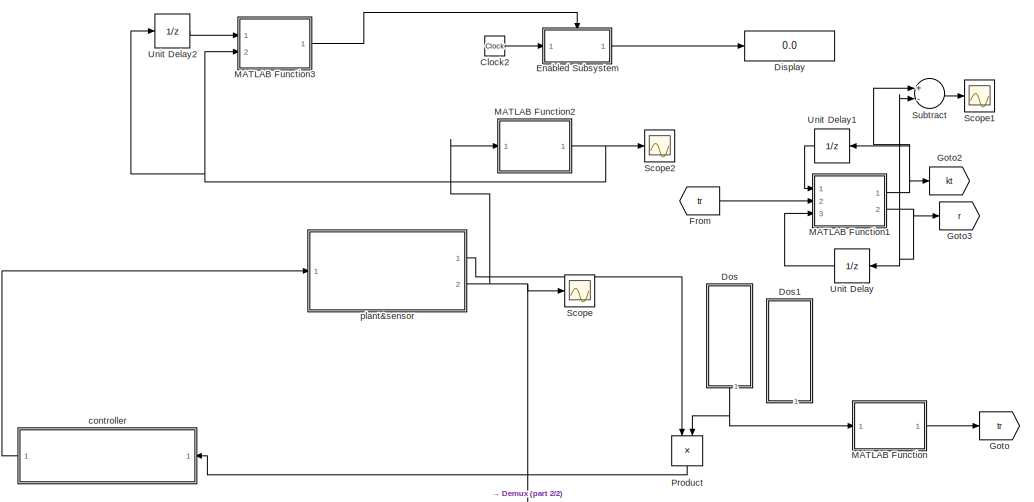
[diagram: root canvas - part 1/2, middle left region]
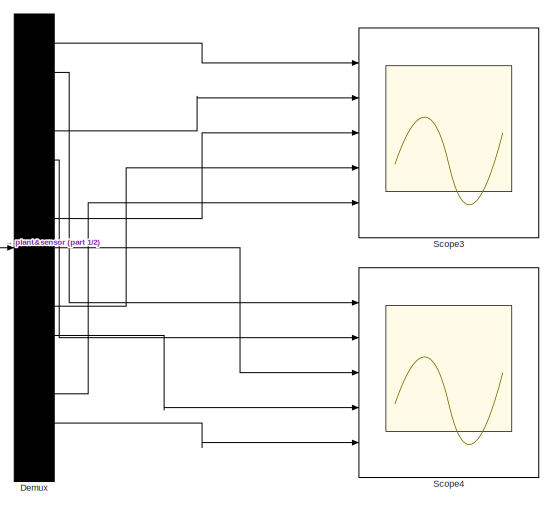
[diagram: root canvas - part 2/2, bottom right region]
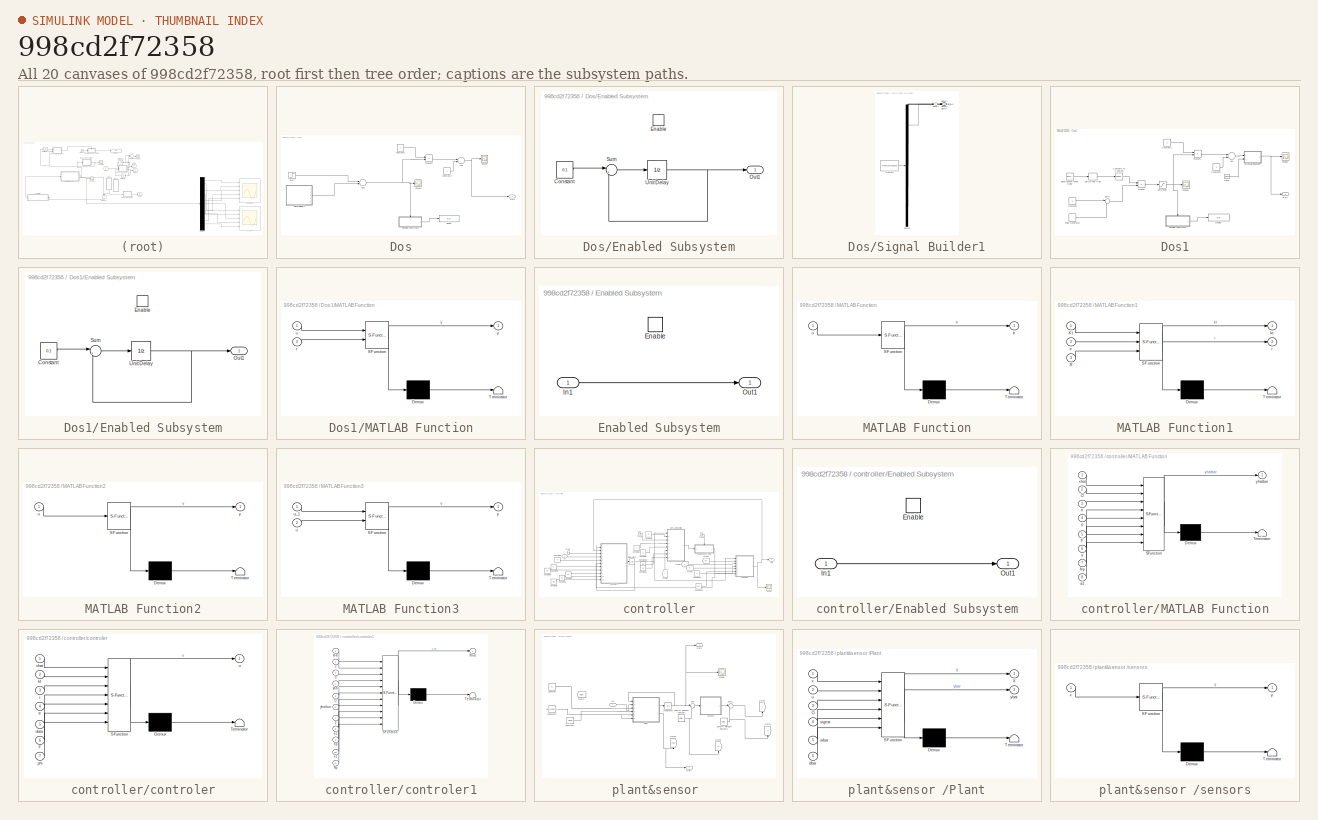
[diagram: thumbnail index - all 20 canvases of the model, root first then tree order]
MODEL slx_998cd2f72358
KIND model
CONFIG AbsTol = auto
CONFIG EnableMultiTasking = off
CONFIG FixedStep = auto
CONFIG MaxStep = auto
CONFIG MinStep = auto
CONFIG RelTol = 1e-3
CONFIG SampleTimeConstraint = Unconstrained
CONFIG Solver = VariableStepAuto
CONFIG SolverName = VariableStepAuto
CONFIG StartTime = 0.0
CONFIG StopTime = 10
BLOCK [Clock] Clock2
BLOCK [Demux] Demux
  DisplayOption = bar
  Outputs = 15
  Ports = [1, 15]
BLOCK [Display] Display
  Decimation = 1
  Ports = [1]
BLOCK [SubSystem] Dos
  Ports = [0, 1]
  RequestExecContextInheritance = off
BLOCK [Sum] Dos/Add
  InputSameDT = off
  OutDataTypeStr = Inherit: Inherit via internal rule
  Ports = [2, 1]
  SaturateOnIntegerOverflow = off
BLOCK [Sum] Dos/Add1
  InputSameDT = off
  OutDataTypeStr = Inherit: Inherit via internal rule
  Ports = [2, 1]
  SaturateOnIntegerOverflow = off
BLOCK [Constant] Dos/Constant1
  Value = -1
BLOCK [Constant] Dos/Constant2
BLOCK [Display] Dos/Display
  Decimation = 1
  Ports = [1]
BLOCK [SubSystem] Dos/Enabled Subsystem
  Ports = [0, 1, 1]
  RequestExecContextInheritance = off
  TreatAsAtomicUnit = on
BLOCK [Constant] Dos/Enabled Subsystem/Constant
  Value = 0.1
BLOCK [EnablePort] Dos/Enabled Subsystem/Enable
  Ports = []
BLOCK [Outport] Dos/Enabled Subsystem/Out1
  IconDisplay = Port number
BLOCK [Sum] Dos/Enabled Subsystem/Sum
  IconShape = round
  InputSameDT = off
  Inputs = |++
  OutDataTypeStr = Inherit: Inherit via internal rule
  Ports = [2, 1]
  SaturateOnIntegerOverflow = off
BLOCK [UnitDelay] Dos/Enabled Subsystem/Unit Delay
  InputProcessing = Elements as channels (sample based)
  SampleTime = -1
BLOCK [Outport] Dos/Out1
  IconDisplay = Port number
BLOCK [Product] Dos/Product1
  InputSameDT = off
  OutDataTypeStr = Inherit: Inherit via internal rule
  Ports = [2, 1]
  RndMeth = Floor
  SaturateOnIntegerOverflow = off
BLOCK [Scope] Dos/Scope1
  Floating = off
  NumInputPorts = 1
  Ports = [1]
  ScopeSpecificationString = Simulink.scopes.TimeScopeBlockCfg('CurrentConfiguration', extmgr.ConfigurationSet(extmgr.Configuration('Core','General UI',true),extmgr.Configuration('Core','Source UI',true),extmgr.Configuration('Sources','WiredSimulink',true,'DataLoggingVariableName','ScopeData1'),extmgr.Configuration('Visuals','Time Domain',true,'SerializedDisplays',{struct('MinYLimReal','-0.125','MaxYLimReal','1.125','YLabelRe...<+1519ch>
BLOCK [Scope] Dos/Scope2
  Floating = off
  NumInputPorts = 1
  Ports = [1]
  ScopeSpecificationString = Simulink.scopes.TimeScopeBlockCfg('CurrentConfiguration', extmgr.ConfigurationSet(extmgr.Configuration('Core','General UI',true),extmgr.Configuration('Core','Source UI',true),extmgr.Configuration('Sources','WiredSimulink',true,'DataLoggingVariableName','ScopeData1'),extmgr.Configuration('Visuals','Time Domain',true,'SerializedDisplays',{struct('MinYLimReal','-0.125','MaxYLimReal','1.125','YLabelRe...<+1386ch>
BLOCK [SubSystem] Dos/Signal Builder1
  ClipboardFcn = sigbuilder_block('clipboard');
  CloseFcn = sigbuilder_block('close');
  ContinueFcn = sigbuilder_block('continue');
  CopyFcn = sigbuilder_block('copy');
  DeleteFcn = sigbuilder_block('delete');
  LoadFcn = sigbuilder_block('load');
  MaskHideContents = on
  ModelCloseFcn = sigbuilder_block('modelClose');
  NameChangeFcn = sigbuilder_block('namechange');
  OpenFcn = sigbuilder_block('open',[5.4 30 1141.2 522.6 ]);
  PauseFcn = sigbuilder_block('pause');
  Ports = [0, 5]
  PreSaveFcn = sigbuilder_block('preSave');
  RequestExecContextInheritance = off
  StartFcn = sigbuilder_block('start');
  StopFcn = sigbuilder_block('stop');
  Tag = STV Subsys
BLOCK [Demux] Dos/Signal Builder1/Demux
  Outputs = 5
  Ports = [1, 5]
  Tag = STV Demux
BLOCK [FromWorkspace] Dos/Signal Builder1/FromWs
  SampleTime = 0
  Tag = STV FromWs
  VariableName = tuvar
  ZeroCross = on
BLOCK [Outport] Dos/Signal Builder1/Signal 1
  IconDisplay = Port number
  Tag = STV Outport
BLOCK [Outport] Dos/Signal Builder1/Signal 2
  IconDisplay = Port number
  Port = 2
  Tag = STV Outport
BLOCK [Outport] Dos/Signal Builder1/Signal 3
  IconDisplay = Port number
  Port = 3
  Tag = STV Outport
BLOCK [Outport] Dos/Signal Builder1/Signal 4
  IconDisplay = Port number
  Port = 4
  Tag = STV Outport
BLOCK [Outport] Dos/Signal Builder1/Signal 5
  IconDisplay = Port number
  Port = 5
  Tag = STV Outport
BLOCK [Step] Dos/Step
  After = -1
  SampleTime = 10
BLOCK [SubSystem] Dos1
  Ports = [0, 1]
  RequestExecContextInheritance = off
BLOCK [Sum] Dos1/Add
  InputSameDT = off
  OutDataTypeStr = Inherit: Inherit via internal rule
  Ports = [2, 1]
  SaturateOnIntegerOverflow = off
BLOCK [Reference] Dos1/Band-Limited White Noise  REF=simulink/Sources/Band-Limited
White Noise
  Ports = [0, 1]
  SourceBlock = simulink/Sources/Band-Limited\nWhite Noise
  SourceProductBaseCode = SL
  SourceProductName = Simulink
  SourceType = Band-Limited White Noise.
BLOCK [Clock] Dos1/Clock
BLOCK [Reference] Dos1/Compare To Constant  REF=simulink/Logic and Bit
Operations/Compare
To Constant
  Ports = [1, 1]
  SourceBlock = simulink/Logic and Bit\nOperations/Compare\nTo Constant
  SourceProductBaseCode = SL
  SourceProductName = Simulink
  SourceType = Compare To Constant
BLOCK [Constant] Dos1/Constant
BLOCK [Constant] Dos1/Constant1
  Value = -1
BLOCK [Constant] Dos1/Constant2
BLOCK [Display] Dos1/Display
  Decimation = 1
  Ports = [1]
BLOCK [SubSystem] Dos1/Enabled Subsystem
  Ports = [0, 1, 1]
  RequestExecContextInheritance = off
  TreatAsAtomicUnit = on
BLOCK [Constant] Dos1/Enabled Subsystem/Constant
  Value = 0.1
BLOCK [EnablePort] Dos1/Enabled Subsystem/Enable
  Ports = []
BLOCK [Outport] Dos1/Enabled Subsystem/Out1
  IconDisplay = Port number
BLOCK [Sum] Dos1/Enabled Subsystem/Sum
  IconShape = round
  InputSameDT = off
  Inputs = |++
  OutDataTypeStr = Inherit: Inherit via internal rule
  Ports = [2, 1]
  SaturateOnIntegerOverflow = off
BLOCK [UnitDelay] Dos1/Enabled Subsystem/Unit Delay
  InputProcessing = Elements as channels (sample based)
  SampleTime = -1
BLOCK [SubSystem] Dos1/MATLAB Function
  ErrorFcn = Stateflow.Translate.translate
  PermitHierarchicalResolution = ExplicitOnly
  Ports = [2, 1]
  RequestExecContextInheritance = off
  SFBlockType = MATLAB Function
  TreatAsAtomicUnit = on
BLOCK [Demux] Dos1/MATLAB Function/ Demux 
  Outputs = 1
  Ports = [1, 1]
BLOCK [S-Function] Dos1/MATLAB Function/ SFunction 
  EnableBusSupport = on
  FunctionName = sf_sfun
  PortCounts = [2 2]
  Ports = [2, 2]
  SFcnIsStateOwnerBlock = off
  SFunctionDeploymentMode = off
  Tag = Stateflow S-Function untitled 9
BLOCK [Terminator] Dos1/MATLAB Function/ Terminator 
BLOCK [Inport] Dos1/MATLAB Function/t
  IconDisplay = Port number
  Port = 2
BLOCK [Inport] Dos1/MATLAB Function/u
  IconDisplay = Port number
BLOCK [Outport] Dos1/MATLAB Function/y
  IconDisplay = Port number
BLOCK [Outport] Dos1/Out1
  IconDisplay = Port number
BLOCK [Product] Dos1/Product
  InputSameDT = off
  OutDataTypeStr = Inherit: Inherit via internal rule
  Ports = [2, 1]
  RndMeth = Floor
  SaturateOnIntegerOverflow = off
BLOCK [Product] Dos1/Product1
  InputSameDT = off
  OutDataTypeStr = Inherit: Inherit via internal rule
  Ports = [2, 1]
  RndMeth = Floor
  SaturateOnIntegerOverflow = off
BLOCK [DiscretePulseGenerator] Dos1/Pulse Generator
  Amplitude = 2
  Ports = [0, 1]
  PulseType = Time based
  PulseWidth = 50
BLOCK [Saturate] Dos1/Saturation
  InputPortMap = u0
  LowerLimit = 0
  Ports = [1, 1]
  UpperLimit = 1
BLOCK [Scope] Dos1/Scope1
  Floating = off
  NumInputPorts = 1
  Ports = [1]
  ScopeSpecificationString = Simulink.scopes.TimeScopeBlockCfg('CurrentConfiguration', extmgr.ConfigurationSet(extmgr.Configuration('Core','General UI',true),extmgr.Configuration('Core','Source UI',true),extmgr.Configuration('Sources','WiredSimulink',true,'DataLoggingVariableName','DOS','DataLogging',true,'DataLoggingSaveFormat','StructureWithTime'),extmgr.Configuration('Visuals','Time Domain',true,'SerializedDisplays',{struc...<+1447ch>
BLOCK [Scope] Dos1/Scope2
  Floating = off
  NumInputPorts = 1
  Ports = [1]
  ScopeSpecificationString = Simulink.scopes.TimeScopeBlockCfg('CurrentConfiguration', extmgr.ConfigurationSet(extmgr.Configuration('Core','General UI',true),extmgr.Configuration('Core','Source UI',true),extmgr.Configuration('Sources','WiredSimulink',true,'DataLoggingVariableName','ScopeData1'),extmgr.Configuration('Visuals','Time Domain',true,'SerializedDisplays',{struct('MinYLimReal','-0.125','MaxYLimReal','1.125','YLabelRe...<+1398ch>
BLOCK [Sum] Dos1/Sum2
  IconShape = round
  InputSameDT = off
  Inputs = |-+
  OutDataTypeStr = Inherit: Inherit via internal rule
  Ports = [2, 1]
  SaturateOnIntegerOverflow = off
BLOCK [ZeroOrderHold] Dos1/Zero-Order Hold
  SampleTime = -1
BLOCK [SubSystem] Enabled Subsystem
  Ports = [1, 1, 1]
  RequestExecContextInheritance = off
  TreatAsAtomicUnit = on
BLOCK [EnablePort] Enabled Subsystem/Enable
  Ports = []
BLOCK [Inport] Enabled Subsystem/In1
  IconDisplay = Port number
BLOCK [Outport] Enabled Subsystem/Out1
  IconDisplay = Port number
BLOCK [From] From
  GotoTag = tr
  TagVisibility = global
BLOCK [Goto] Goto
  GotoTag = tr
  TagVisibility = global
BLOCK [Goto] Goto2
  GotoTag = kt
  TagVisibility = global
BLOCK [Goto] Goto3
  GotoTag = r
  TagVisibility = global
BLOCK [SubSystem] MATLAB Function
  ErrorFcn = Stateflow.Translate.translate
  PermitHierarchicalResolution = ExplicitOnly
  Ports = [1, 1]
  RequestExecContextInheritance = off
  SFBlockType = MATLAB Function
  TreatAsAtomicUnit = on
BLOCK [Demux] MATLAB Function/ Demux 
  Outputs = 1
  Ports = [1, 1]
BLOCK [S-Function] MATLAB Function/ SFunction 
  EnableBusSupport = on
  FunctionName = sf_sfun
  PortCounts = [1 2]
  Ports = [1, 2]
  SFcnIsStateOwnerBlock = off
  SFunctionDeploymentMode = off
  Tag = Stateflow S-Function untitled 4
BLOCK [Terminator] MATLAB Function/ Terminator 
BLOCK [Outport] MATLAB Function/tr
  IconDisplay = Port number
BLOCK [Inport] MATLAB Function/u
  IconDisplay = Port number
BLOCK [SubSystem] MATLAB Function1
  ErrorFcn = Stateflow.Translate.translate
  PermitHierarchicalResolution = ExplicitOnly
  Ports = [3, 2]
  RequestExecContextInheritance = off
  SFBlockType = MATLAB Function
  TreatAsAtomicUnit = on
BLOCK [Demux] MATLAB Function1/ Demux 
  Outputs = 1
  Ports = [1, 1]
BLOCK [S-Function] MATLAB Function1/ SFunction 
  EnableBusSupport = on
  FunctionName = sf_sfun
  PortCounts = [3 3]
  Ports = [3, 3]
  SFcnIsStateOwnerBlock = off
  SFunctionDeploymentMode = off
  Tag = Stateflow S-Function untitled 12
BLOCK [Terminator] MATLAB Function1/ Terminator 
BLOCK [Inport] MATLAB Function1/Kt
  IconDisplay = Port number
BLOCK [Inport] MATLAB Function1/R
  IconDisplay = Port number
  Port = 3
BLOCK [Outport] MATLAB Function1/kt
  IconDisplay = Port number
BLOCK [Outport] MATLAB Function1/r
  IconDisplay = Port number
  Port = 2
BLOCK [Inport] MATLAB Function1/tr
  IconDisplay = Port number
  Port = 2
BLOCK [SubSystem] MATLAB Function2
  ErrorFcn = Stateflow.Translate.translate
  PermitHierarchicalResolution = ExplicitOnly
  Ports = [1, 1]
  RequestExecContextInheritance = off
  SFBlockType = MATLAB Function
  TreatAsAtomicUnit = on
BLOCK [Demux] MATLAB Function2/ Demux 
  Outputs = 1
  Ports = [1, 1]
BLOCK [S-Function] MATLAB Function2/ SFunction 
  EnableBusSupport = on
  FunctionName = sf_sfun
  PortCounts = [1 2]
  Ports = [1, 2]
  SFcnIsStateOwnerBlock = off
  SFunctionDeploymentMode = off
  Tag = Stateflow S-Function untitled 8
BLOCK [Terminator] MATLAB Function2/ Terminator 
BLOCK [Inport] MATLAB Function2/u
  IconDisplay = Port number
BLOCK [Outport] MATLAB Function2/y
  IconDisplay = Port number
BLOCK [SubSystem] MATLAB Function3
  ErrorFcn = Stateflow.Translate.translate
  PermitHierarchicalResolution = ExplicitOnly
  Ports = [2, 1]
  RequestExecContextInheritance = off
  SFBlockType = MATLAB Function
  TreatAsAtomicUnit = on
BLOCK [Demux] MATLAB Function3/ Demux 
  Outputs = 1
  Ports = [1, 1]
BLOCK [S-Function] MATLAB Function3/ SFunction 
  EnableBusSupport = on
  FunctionName = sf_sfun
  PortCounts = [2 2]
  Ports = [2, 2]
  SFcnIsStateOwnerBlock = off
  SFunctionDeploymentMode = off
  Tag = Stateflow S-Function untitled 5
BLOCK [Terminator] MATLAB Function3/ Terminator 
BLOCK [Inport] MATLAB Function3/u
  IconDisplay = Port number
  Port = 2
BLOCK [Inport] MATLAB Function3/u_1
  IconDisplay = Port number
BLOCK [Outport] MATLAB Function3/y
  IconDisplay = Port number
BLOCK [Product] Product
  InputSameDT = off
  OutDataTypeStr = Inherit: Inherit via internal rule
  Ports = [2, 1]
  RndMeth = Floor
  SaturateOnIntegerOverflow = off
BLOCK [Scope] Scope
  Floating = off
  NumInputPorts = 1
  Ports = [1]
  ScopeSpecificationString = Simulink.scopes.TimeScopeBlockCfg('CurrentConfiguration', extmgr.ConfigurationSet(extmgr.Configuration('Core','General UI',true),extmgr.Configuration('Core','Source UI',true),extmgr.Configuration('Sources','WiredSimulink',true,'DataLoggingVariableName','xlqr','DataLogging',true,'DataLoggingSaveFormat','StructureWithTime'),extmgr.Configuration('Visuals','Time Domain',true,'SerializedDisplays',{stru...<+1819ch>
BLOCK [Scope] Scope1
  Floating = off
  NumInputPorts = 1
  Ports = [1]
  ScopeSpecificationString = Simulink.scopes.TimeScopeBlockCfg('CurrentConfiguration', extmgr.ConfigurationSet(extmgr.Configuration('Core','General UI',true),extmgr.Configuration('Core','Source UI',true),extmgr.Configuration('Sources','WiredSimulink',true,'DataLoggingVariableName','ScopeData2'),extmgr.Configuration('Visuals','Time Domain',true,'SerializedDisplays',{struct('MinYLimReal','-0.375','MaxYLimReal','3.375','YLabelRe...<+1384ch>
BLOCK [Scope] Scope2
  Floating = off
  NumInputPorts = 1
  Ports = [1]
  ScopeSpecificationString = Simulink.scopes.TimeScopeBlockCfg('CurrentConfiguration', extmgr.ConfigurationSet(extmgr.Configuration('Core','General UI',true),extmgr.Configuration('Core','Source UI',true),extmgr.Configuration('Sources','WiredSimulink',true,'DataLoggingVariableName','nxlqr','DataLogging',true,'DataLoggingSaveFormat','StructureWithTime'),extmgr.Configuration('Visuals','Time Domain',true,'SerializedDisplays',{str...<+1477ch>
BLOCK [Scope] Scope3
  Floating = off
  NumInputPorts = 5
  Ports = [5]
  ScopeSpecificationString = Simulink.scopes.TimeScopeBlockCfg('CurrentConfiguration', extmgr.ConfigurationSet(extmgr.Configuration('Core','General UI',true),extmgr.Configuration('Core','Source UI',true),extmgr.Configuration('Sources','WiredSimulink',true,'DataLoggingVariableName','ScopeData1','DataLoggingSaveFormat','StructureWithTime'),extmgr.Configuration('Visuals','Time Domain',true,'SerializedDisplays',{struct('MinYLimRe...<+1542ch>
BLOCK [Scope] Scope4
  Floating = off
  NumInputPorts = 5
  Ports = [5]
  ScopeSpecificationString = Simulink.scopes.TimeScopeBlockCfg('CurrentConfiguration', extmgr.ConfigurationSet(extmgr.Configuration('Core','General UI',true),extmgr.Configuration('Core','Source UI',true),extmgr.Configuration('Sources','WiredSimulink',true,'DataLoggingVariableName','ScopeData2'),extmgr.Configuration('Visuals','Time Domain',true,'SerializedDisplays',{struct('MinYLimReal','-9.11048','MaxYLimReal','8.75886','YLab...<+1437ch>
BLOCK [Sum] Subtract
  InputSameDT = off
  Inputs = +-
  OutDataTypeStr = Inherit: Inherit via internal rule
  Ports = [2, 1]
  SaturateOnIntegerOverflow = off
BLOCK [UnitDelay] Unit Delay
  InputProcessing = Elements as channels (sample based)
  SampleTime = 0.1
BLOCK [UnitDelay] Unit Delay1
  InputProcessing = Elements as channels (sample based)
  SampleTime = 0.1
BLOCK [UnitDelay] Unit Delay2
  InputProcessing = Elements as channels (sample based)
  SampleTime = 0.1
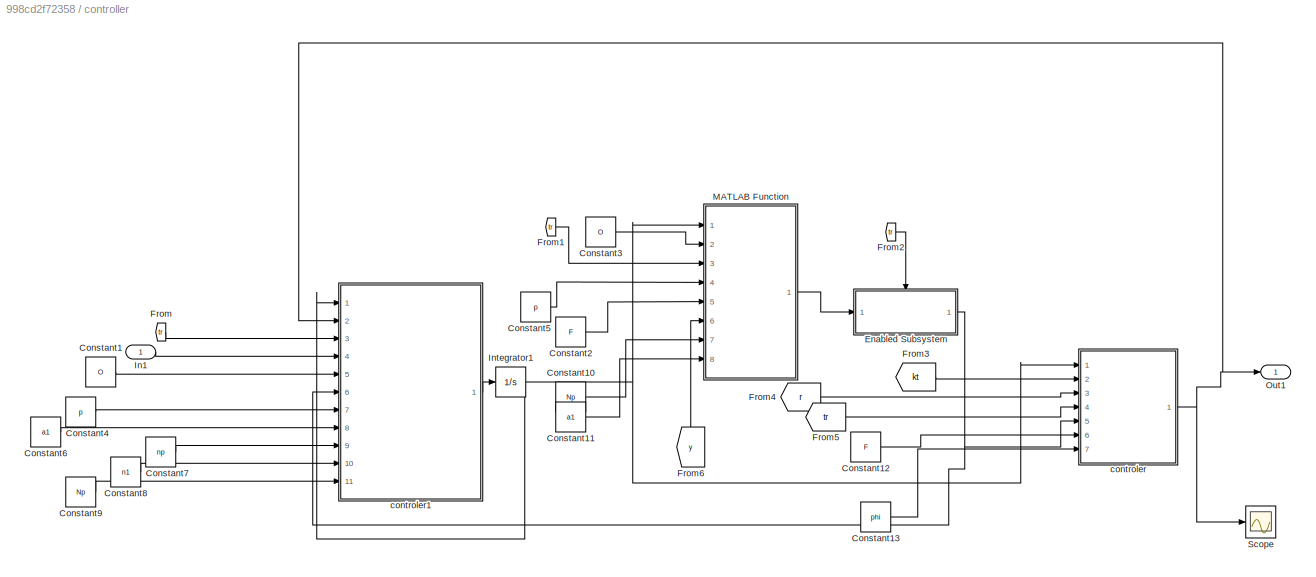
BLOCK [SubSystem] controller
  Ports = [1, 1]
  RequestExecContextInheritance = off
BLOCK [Constant] controller/Constant1
  Value = O
BLOCK [Constant] controller/Constant10
  Value = Np
BLOCK [Constant] controller/Constant11
  Value = a1
BLOCK [Constant] controller/Constant12
  Value = F
BLOCK [Constant] controller/Constant13
  Value = phi
BLOCK [Constant] controller/Constant2
  Value = F
BLOCK [Constant] controller/Constant3
  Value = O
BLOCK [Constant] controller/Constant4
  Value = p
BLOCK [Constant] controller/Constant5
  Value = p
BLOCK [Constant] controller/Constant6
  Value = a1
BLOCK [Constant] controller/Constant7
  Value = np
BLOCK [Constant] controller/Constant8
  Value = n1
BLOCK [Constant] controller/Constant9
  Value = Np
BLOCK [SubSystem] controller/Enabled Subsystem
  Ports = [1, 1, 1]
  RequestExecContextInheritance = off
  TreatAsAtomicUnit = on
BLOCK [EnablePort] controller/Enabled Subsystem/Enable
  Ports = []
BLOCK [Inport] controller/Enabled Subsystem/In1
  IconDisplay = Port number
BLOCK [Outport] controller/Enabled Subsystem/Out1
  IconDisplay = Port number
BLOCK [From] controller/From
  GotoTag = tr
  TagVisibility = global
BLOCK [From] controller/From1
  GotoTag = tr
  TagVisibility = global
BLOCK [From] controller/From2
  GotoTag = tr
  TagVisibility = global
BLOCK [From] controller/From3
  GotoTag = kt
  TagVisibility = global
BLOCK [From] controller/From4
  GotoTag = r
  TagVisibility = global
BLOCK [From] controller/From5
  GotoTag = tr
  TagVisibility = global
BLOCK [From] controller/From6
  GotoTag = y
  TagVisibility = global
BLOCK [Inport] controller/In1
  IconDisplay = Port number
BLOCK [Integrator] controller/Integrator1
  InitialCondition = -10*[-7;-6;-5;-4;-3;-2;-1;0;1;2;3;4;5;6;7]
  Ports = [1, 1]
BLOCK [SubSystem] controller/MATLAB Function
  ErrorFcn = Stateflow.Translate.translate
  PermitHierarchicalResolution = ExplicitOnly
  Ports = [8, 1]
  RequestExecContextInheritance = off
  SFBlockType = MATLAB Function
  TreatAsAtomicUnit = on
BLOCK [Demux] controller/MATLAB Function/ Demux 
  Outputs = 1
  Ports = [1, 1]
BLOCK [S-Function] controller/MATLAB Function/ SFunction 
  EnableBusSupport = on
  FunctionName = sf_sfun
  PortCounts = [8 2]
  Ports = [8, 2]
  SFcnIsStateOwnerBlock = off
  SFunctionDeploymentMode = off
  Tag = Stateflow S-Function untitled 3
BLOCK [Terminator] controller/MATLAB Function/ Terminator 
BLOCK [Inport] controller/MATLAB Function/F
  IconDisplay = Port number
  Port = 5
BLOCK [Inport] controller/MATLAB Function/Np
  IconDisplay = Port number
  Port = 7
BLOCK [Inport] controller/MATLAB Function/O
  IconDisplay = Port number
  Port = 2
BLOCK [Inport] controller/MATLAB Function/a1
  IconDisplay = Port number
  Port = 8
BLOCK [Inport] controller/MATLAB Function/p
  IconDisplay = Port number
  Port = 4
BLOCK [Inport] controller/MATLAB Function/tr
  IconDisplay = Port number
  Port = 3
BLOCK [Inport] controller/MATLAB Function/xhat
  IconDisplay = Port number
BLOCK [Inport] controller/MATLAB Function/y
  IconDisplay = Port number
  Port = 6
BLOCK [Outport] controller/MATLAB Function/yhatbar
  IconDisplay = Port number
BLOCK [Outport] controller/Out1
  IconDisplay = Port number
BLOCK [Scope] controller/Scope
  Floating = off
  NumInputPorts = 1
  Ports = [1]
  ScopeSpecificationString = Simulink.scopes.TimeScopeBlockCfg('CurrentConfiguration', extmgr.ConfigurationSet(extmgr.Configuration('Core','General UI',true),extmgr.Configuration('Core','Source UI',true),extmgr.Configuration('Sources','WiredSimulink',true,'DataLoggingVariableName','ulqr','DataLogging',true,'DataLoggingSaveFormat','StructureWithTime'),extmgr.Configuration('Visuals','Time Domain',true,'SerializedDisplays',{stru...<+1591ch>
BLOCK [SubSystem] controller/controler
  ErrorFcn = Stateflow.Translate.translate
  PermitHierarchicalResolution = ExplicitOnly
  Ports = [7, 1]
  RequestExecContextInheritance = off
  SFBlockType = MATLAB Function
  TreatAsAtomicUnit = on
BLOCK [Demux] controller/controler/ Demux 
  Outputs = 1
  Ports = [1, 1]
BLOCK [S-Function] controller/controler/ SFunction 
  EnableBusSupport = on
  FunctionName = sf_sfun
  PortCounts = [7 2]
  Ports = [7, 2]
  SFcnIsStateOwnerBlock = off
  SFunctionDeploymentMode = off
  Tag = Stateflow S-Function untitled 1
BLOCK [Terminator] controller/controler/ Terminator 
BLOCK [Inport] controller/controler/F
  IconDisplay = Port number
  Port = 6
BLOCK [Inport] controller/controler/data
  IconDisplay = Port number
  Port = 5
BLOCK [Inport] controller/controler/kt
  IconDisplay = Port number
  Port = 2
BLOCK [Inport] controller/controler/phi
  IconDisplay = Port number
  Port = 7
BLOCK [Inport] controller/controler/r
  IconDisplay = Port number
  Port = 3
BLOCK [Inport] controller/controler/tr
  IconDisplay = Port number
  Port = 4
BLOCK [Outport] controller/controler/u
  IconDisplay = Port number
BLOCK [Inport] controller/controler/xhat
  IconDisplay = Port number
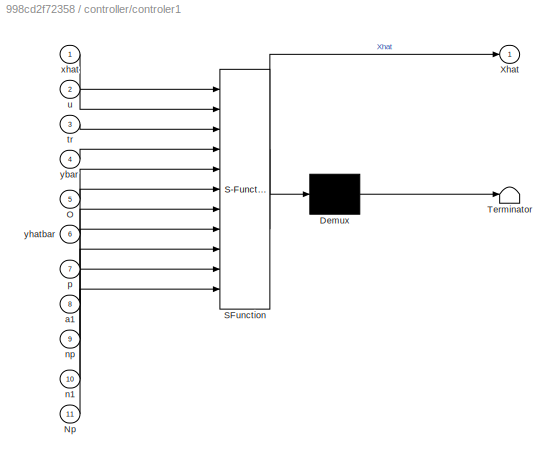
BLOCK [SubSystem] controller/controler1
  ErrorFcn = Stateflow.Translate.translate
  PermitHierarchicalResolution = ExplicitOnly
  Ports = [11, 1]
  RequestExecContextInheritance = off
  SFBlockType = MATLAB Function
  TreatAsAtomicUnit = on
BLOCK [Demux] controller/controler1/ Demux 
  Outputs = 1
  Ports = [1, 1]
BLOCK [S-Function] controller/controler1/ SFunction 
  EnableBusSupport = on
  FunctionName = sf_sfun
  PortCounts = [11 2]
  Ports = [11, 2]
  SFcnIsStateOwnerBlock = off
  SFunctionDeploymentMode = off
  Tag = Stateflow S-Function untitled 2
BLOCK [Terminator] controller/controler1/ Terminator 
BLOCK [Inport] controller/controler1/Np
  IconDisplay = Port number
  Port = 11
BLOCK [Inport] controller/controler1/O
  IconDisplay = Port number
  Port = 5
BLOCK [Outport] controller/controler1/Xhat
  IconDisplay = Port number
BLOCK [Inport] controller/controler1/a1
  IconDisplay = Port number
  Port = 8
BLOCK [Inport] controller/controler1/n1
  IconDisplay = Port number
  Port = 10
BLOCK [Inport] controller/controler1/np
  IconDisplay = Port number
  Port = 9
BLOCK [Inport] controller/controler1/p
  IconDisplay = Port number
  Port = 7
BLOCK [Inport] controller/controler1/tr
  IconDisplay = Port number
  Port = 3
BLOCK [Inport] controller/controler1/u
  IconDisplay = Port number
  Port = 2
BLOCK [Inport] controller/controler1/xhat
  IconDisplay = Port number
BLOCK [Inport] controller/controler1/ybar
  IconDisplay = Port number
  Port = 4
BLOCK [Inport] controller/controler1/yhatbar
  IconDisplay = Port number
  Port = 6
BLOCK [SubSystem] plant&sensor 
  Ports = [1, 2]
  RequestExecContextInheritance = off
BLOCK [Constant] plant&sensor /Constant
  Value = O
BLOCK [Constant] plant&sensor /Constant1
  Value = sigma
BLOCK [Constant] plant&sensor /Constant2
  Value = 0.01*rand(5*a1*Np,1)
BLOCK [From] plant&sensor /From1
  GotoTag = ubar
BLOCK [Goto] plant&sensor /Goto1
  GotoTag = d
  TagVisibility = global
BLOCK [Goto] plant&sensor /Goto2
  GotoTag = w
  TagVisibility = global
BLOCK [Goto] plant&sensor /Goto3
  GotoTag = ybar
  TagVisibility = global
BLOCK [Goto] plant&sensor /Goto4
  GotoTag = y
  TagVisibility = global
BLOCK [Inport] plant&sensor /In1
  IconDisplay = Port number
BLOCK [Integrator] plant&sensor /Integrator
  InitialCondition = 10*[-7;-6;-5;-4;-3;-2;-1;0;1;2;3;4;5;6;7]
  Ports = [1, 1]
BLOCK [Outport] plant&sensor /Out1
  IconDisplay = Port number
BLOCK [Outport] plant&sensor /Out2
  IconDisplay = Port number
  Port = 2
BLOCK [SubSystem] plant&sensor /Plant
  ErrorFcn = Stateflow.Translate.translate
  PermitHierarchicalResolution = ExplicitOnly
  Ports = [6, 2]
  RequestExecContextInheritance = off
  SFBlockType = MATLAB Function
  TreatAsAtomicUnit = on
BLOCK [Demux] plant&sensor /Plant/ Demux 
  Outputs = 1
  Ports = [1, 1]
BLOCK [S-Function] plant&sensor /Plant/ SFunction 
  EnableBusSupport = on
  FunctionName = sf_sfun
  PortCounts = [6 3]
  Ports = [6, 3]
  SFcnIsStateOwnerBlock = off
  SFunctionDeploymentMode = off
  Tag = Stateflow S-Function untitled 6
BLOCK [Terminator] plant&sensor /Plant/ Terminator 
BLOCK [Inport] plant&sensor /Plant/O
  IconDisplay = Port number
  Port = 3
BLOCK [Outport] plant&sensor /Plant/X
  IconDisplay = Port number
BLOCK [Inport] plant&sensor /Plant/dbar
  IconDisplay = Port number
  Port = 6
BLOCK [Inport] plant&sensor /Plant/sigma
  IconDisplay = Port number
  Port = 4
BLOCK [Inport] plant&sensor /Plant/u
  IconDisplay = Port number
  Port = 2
BLOCK [Inport] plant&sensor /Plant/wbar
  IconDisplay = Port number
  Port = 5
BLOCK [Inport] plant&sensor /Plant/x
  IconDisplay = Port number
BLOCK [Outport] plant&sensor /Plant/ybar
  IconDisplay = Port number
  Port = 2
BLOCK [Scope] plant&sensor /Scope
  Floating = off
  NumInputPorts = 1
  Ports = [1]
  ScopeSpecificationString = Simulink.scopes.TimeScopeBlockCfg('CurrentConfiguration', extmgr.ConfigurationSet(extmgr.Configuration('Core','General UI',true),extmgr.Configuration('Core','Source UI',true),extmgr.Configuration('Sources','WiredSimulink',true,'DataLoggingVariableName','ScopeData3'),extmgr.Configuration('Visuals','Time Domain',true,'SerializedDisplays',{struct('MinYLimReal','-4.94599','MaxYLimReal','7.40492','YLab...<+1430ch>
BLOCK [Sum] plant&sensor /Sum
  IconShape = round
  InputSameDT = off
  Inputs = |++
  OutDataTypeStr = Inherit: Inherit via internal rule
  Ports = [2, 1]
  SaturateOnIntegerOverflow = off
BLOCK [Sum] plant&sensor /Sum1
  IconShape = round
  InputSameDT = off
  Inputs = |++
  OutDataTypeStr = Inherit: Inherit via internal rule
  Ports = [2, 1]
  SaturateOnIntegerOverflow = off
BLOCK [UniformRandomNumber] plant&sensor /Uniform Random Number
  Maximum = 0.01
  Minimum = -0.01
  SampleTime = Ts
BLOCK [UniformRandomNumber] plant&sensor /Uniform Random Number1
  Maximum = 0.01
  Minimum = -0.01
  SampleTime = Ts
BLOCK [SubSystem] plant&sensor /sensors
  ErrorFcn = Stateflow.Translate.translate
  PermitHierarchicalResolution = ExplicitOnly
  Ports = [1, 1]
  RequestExecContextInheritance = off
  SFBlockType = MATLAB Function
  TreatAsAtomicUnit = on
BLOCK [Demux] plant&sensor /sensors/ Demux 
  Outputs = 1
  Ports = [1, 1]
BLOCK [S-Function] plant&sensor /sensors/ SFunction 
  EnableBusSupport = on
  FunctionName = sf_sfun
  PortCounts = [1 2]
  Ports = [1, 2]
  SFcnIsStateOwnerBlock = off
  SFunctionDeploymentMode = off
  Tag = Stateflow S-Function untitled 7
BLOCK [Terminator] plant&sensor /sensors/ Terminator 
BLOCK [Inport] plant&sensor /sensors/x
  IconDisplay = Port number
BLOCK [Outport] plant&sensor /sensors/y
  IconDisplay = Port number
LINE Clock2:1 -> Enabled Subsystem:1
LINE Demux:1 -> Scope3:1
LINE Demux:10 -> Scope3:4
LINE Demux:11 -> Scope4:4
LINE Demux:13 -> Scope3:5
LINE Demux:14 -> Scope4:5
LINE Demux:2 -> Scope4:1
LINE Demux:4 -> Scope3:2
LINE Demux:5 -> Scope4:2
LINE Demux:7 -> Scope3:3
LINE Demux:8 -> Scope4:3
NET Dos/Add1:1 -> Dos/Enabled Subsystem:enable, Dos/Product1:2, Dos/Scope1:1
NET Dos/Add:1 -> Dos/Out1:1, Dos/Scope2:1
LINE Dos/Constant1:1 -> Dos/Product1:1
LINE Dos/Constant2:1 -> Dos/Add:2
LINE Dos/Enabled Subsystem/Constant:1 -> Dos/Enabled Subsystem/Sum:1
LINE Dos/Enabled Subsystem/Sum:1 -> Dos/Enabled Subsystem/Unit Delay:1
NET Dos/Enabled Subsystem/Unit Delay:1 -> Dos/Enabled Subsystem/Out1:1, Dos/Enabled Subsystem/Sum:2
LINE Dos/Enabled Subsystem:1 -> Dos/Display:1
LINE Dos/Product1:1 -> Dos/Add:1
LINE Dos/Signal Builder1:3 -> Dos/Add1:2
LINE Dos/Step:1 -> Dos/Add1:1
LINE Dos1/Add:1 -> Dos1/MATLAB Function:1
LINE Dos1/Band-Limited White Noise:1 -> Dos1/Zero-Order Hold:1
LINE Dos1/Clock:1 -> Dos1/MATLAB Function:2
LINE Dos1/Compare To Constant:1 -> Dos1/Product:1
LINE Dos1/Constant1:1 -> Dos1/Product1:1
LINE Dos1/Constant2:1 -> Dos1/Add:2
LINE Dos1/Constant:1 -> Dos1/Sum2:1
LINE Dos1/Enabled Subsystem/Constant:1 -> Dos1/Enabled Subsystem/Sum:1
LINE Dos1/Enabled Subsystem/Sum:1 -> Dos1/Enabled Subsystem/Unit Delay:1
NET Dos1/Enabled Subsystem/Unit Delay:1 -> Dos1/Enabled Subsystem/Out1:1, Dos1/Enabled Subsystem/Sum:2
LINE Dos1/Enabled Subsystem:1 -> Dos1/Display:1
NET Dos1/MATLAB Function:1 -> Dos1/Out1:1, Dos1/Scope2:1
LINE Dos1/Product1:1 -> Dos1/Add:1
LINE Dos1/Product:1 -> Dos1/Saturation:1
LINE Dos1/Pulse Generator:1 -> Dos1/Sum2:2
NET Dos1/Saturation:1 -> Dos1/Enabled Subsystem:enable, Dos1/Product1:2, Dos1/Scope1:1
LINE Dos1/Sum2:1 -> Dos1/Product:2
LINE Dos1/Zero-Order Hold:1 -> Dos1/Compare To Constant:1
NET Dos:1 -> MATLAB Function:1, Product:2
LINE Enabled Subsystem/In1:1 -> Enabled Subsystem/Out1:1
LINE Enabled Subsystem:1 -> Display:1
LINE From:1 -> MATLAB Function1:2
NET MATLAB Function1:1 -> Goto2:1, Subtract:1, Unit Delay1:1
NET MATLAB Function1:2 -> Goto3:1, Subtract:2, Unit Delay:1
NET MATLAB Function2:1 -> MATLAB Function3:2, Scope2:1, Unit Delay2:1
LINE MATLAB Function3:1 -> Enabled Subsystem:enable
LINE MATLAB Function:1 -> Goto:1
LINE Product:1 -> controller:1
LINE Subtract:1 -> Scope1:1
LINE Unit Delay1:1 -> MATLAB Function1:1
LINE Unit Delay2:1 -> MATLAB Function3:1
LINE Unit Delay:1 -> MATLAB Function1:3
LINE controller/Constant10:1 -> controller/MATLAB Function:7
LINE controller/Constant11:1 -> controller/MATLAB Function:8
LINE controller/Constant12:1 -> controller/controler:6
LINE controller/Constant13:1 -> controller/controler:7
LINE controller/Constant1:1 -> controller/controler1:5
LINE controller/Constant2:1 -> controller/MATLAB Function:5
LINE controller/Constant3:1 -> controller/MATLAB Function:2
LINE controller/Constant4:1 -> controller/controler1:7
LINE controller/Constant5:1 -> controller/MATLAB Function:4
LINE controller/Constant6:1 -> controller/controler1:8
LINE controller/Constant7:1 -> controller/controler1:9
LINE controller/Constant8:1 -> controller/controler1:10
LINE controller/Constant9:1 -> controller/controler1:11
LINE controller/Enabled Subsystem/In1:1 -> controller/Enabled Subsystem/Out1:1
NET controller/Enabled Subsystem:1 -> controller/controler1:6, controller/controler:5
LINE controller/From1:1 -> controller/MATLAB Function:3
LINE controller/From2:1 -> controller/Enabled Subsystem:enable
LINE controller/From3:1 -> controller/controler:2
LINE controller/From4:1 -> controller/controler:3
LINE controller/From5:1 -> controller/controler:4
LINE controller/From6:1 -> controller/MATLAB Function:6
LINE controller/From:1 -> controller/controler1:3
LINE controller/In1:1 -> controller/controler1:4
NET controller/Integrator1:1 -> controller/MATLAB Function:1, controller/controler1:1, controller/controler:1
LINE controller/MATLAB Function:1 -> controller/Enabled Subsystem:1
LINE controller/controler1:1 -> controller/Integrator1:1
NET controller/controler:1 -> controller/Out1:1, controller/Scope:1, controller/controler1:2
LINE controller:1 -> plant&sensor :1
LINE plant&sensor /Constant1:1 -> plant&sensor /Plant:4
NET plant&sensor /Constant2:1 -> plant&sensor /Plant:5, plant&sensor /Plant:6
LINE plant&sensor /Constant:1 -> plant&sensor /Plant:3
LINE plant&sensor /In1:1 -> plant&sensor /Plant:2
NET plant&sensor /Integrator:1 -> plant&sensor /Out2:1, plant&sensor /Plant:1, plant&sensor /Scope:1, plant&sensor /Sum:1
LINE plant&sensor /Plant:1 -> plant&sensor /Integrator:1
NET plant&sensor /Plant:2 -> plant&sensor /Goto3:1, plant&sensor /Out1:1
LINE plant&sensor /Sum1:1 -> plant&sensor /Goto4:1
LINE plant&sensor /Sum:1 -> plant&sensor /sensors:1
NET plant&sensor /Uniform Random Number1:1 -> plant&sensor /Goto1:1, plant&sensor /Sum1:2
NET plant&sensor /Uniform Random Number:1 -> plant&sensor /Goto2:1, plant&sensor /Sum:2
LINE plant&sensor /sensors:1 -> plant&sensor /Sum1:1
LINE plant&sensor :1 -> Product:1
NET plant&sensor :2 -> Demux:1, MATLAB Function2:1, Scope:1
note: NET lines group one-source signal fan-out (src -> all destinations, sorted); 1:1 wires keep LINE
CHART controller/controler states=1 transitions=1
  STATE_LABEL 'eML_blk_kernel()'
  STATE_LABEL 'SCRIPT:\nfunction u = fcn(xhat,kt,r,tr, data,F,phi)\nA=[ 1.049     0.03183    -0.02926\n     0.01347       1.023  -0.0001932\n  -0.0007729     -0.1155      0.9048];\nB=[0.2026  6.946e-05\n   -0.1504     0.1012\n  0.008724    0.08931 ];\nC=eye(3);\n\n%  K=[    1.9115   -1.1429    0.4148\n%     3.0186    4.4625   -0.5557];\nq1=[1.9115   -1.1429    0.4148    0.0000    0.0000   -0.0000    0.0000    0.0000   -0.00...<+1747ch>'
CHART controller/controler1 states=1 transitions=1
  STATE_LABEL 'eML_blk_kernel()'
  STATE_LABEL 'SCRIPT:\nfunction Xhat = fcn(xhat,u,tr,ybar,O,yhatbar,p,a1,np,n1,Np)\n\nA=[.48 .29 -.3;.13 .23 0;0 -1.2 -1];\nB=[2 0;-1.5 1; 0 1];\nC=eye(3);\n\n\nA_bar=[ 1.049     0.03183    -0.02926\n    0.01347       1.023  -0.0001932\n    -0.0007729     -0.1155      0.9048];\nB_bar=[0.2026  6.946e-05\n    -0.1504     0.1012\n    0.008724    0.08931 ];\n\n\nG=[ 5.0468    1.5160   -0.5215\n    1.5160    1.8633   -0.6870\n    -0....<+379ch>'
CHART controller/MATLAB Function states=1 transitions=1
  STATE_LABEL 'eML_blk_kernel()'
  STATE_LABEL 'SCRIPT:\nfunction yhatbar = fcn(xhat,O,tr,p,F,y,Np,a1)\n\nFF=p;\nubar=FF*xhat;\nF0=kron(eye(5),F);\nO0=kron(eye(5),O);\nif tr==1\nyhatbar=y;\nelse\n    H=[eye(3) zeros(3,Np*a1-a1)];\n    H0=kron(eye(5),H);\nyhatbar =H0*(O0*xhat+F0*ubar);\nend\n\n'
CHART MATLAB Function states=1 transitions=1
  STATE_LABEL 'eML_blk_kernel()'
  STATE_LABEL 'SCRIPT:\nfunction tr = fcn(u)\nif u==1\n    tr=1\nelse\n    tr=0\nend\n\n'
CHART MATLAB Function3 states=1 transitions=1
  STATE_LABEL 'eML_blk_kernel()'
  STATE_LABEL 'SCRIPT:\nfunction y = fcn(u_1,u)\nif (u-u_1<.001)\ny=0;\nelse\ny=1;\nend'
CHART plant&sensor
/Plant states=1 transitions=1
  STATE_LABEL 'eML_blk_kernel()'
  STATE_LABEL 'SCRIPT:\nfunction [X,ybar] = fcn(x,u,O,sigma,wbar,dbar)\nA=[.48 .29 -.3;.13 .23 0;0 -1.2 -1];\nB=[2 0;-1.5 1; 0 1];\nA0=kron(eye(5),A);\nB0=kron(eye(5),B);\nO0=kron(eye(5),O);\nsigma0=kron(eye(5),sigma)\nX =A0*x+B0*u;\nybar = O0*x+sigma0*wbar+dbar;\n'
CHART plant&sensor
/sensors states=1 transitions=1
  STATE_LABEL 'eML_blk_kernel()'
  STATE_LABEL 'SCRIPT:\nfunction y = fcn(x)\nC=eye(3);\nC0=kron(eye(5),C);\ny=C0*x;\n\n'
CHART MATLAB Function2 states=1 transitions=1
  STATE_LABEL 'eML_blk_kernel()'
  STATE_LABEL 'SCRIPT:\nfunction y = fcn( u)\ny=norm(u);\n'
CHART Dos1/MATLAB Function states=1 transitions=1
  STATE_LABEL 'eML_blk_kernel()'
  STATE_LABEL 'SCRIPT:\nfunction y = fcn(u,t)\nif t>10\n    y=1;\nelse\n    y=u;\nend\n'
CHART MATLAB Function1 states=1 transitions=1
  STATE_LABEL 'eML_blk_kernel()'
  STATE_LABEL 'SCRIPT:\nfunction [kt,r] = fcn( Kt,tr,R)\n\nkt=Kt+1;\nif tr==1\n    r=R+1;\nelse\n    r=R;\nend\n\n'
